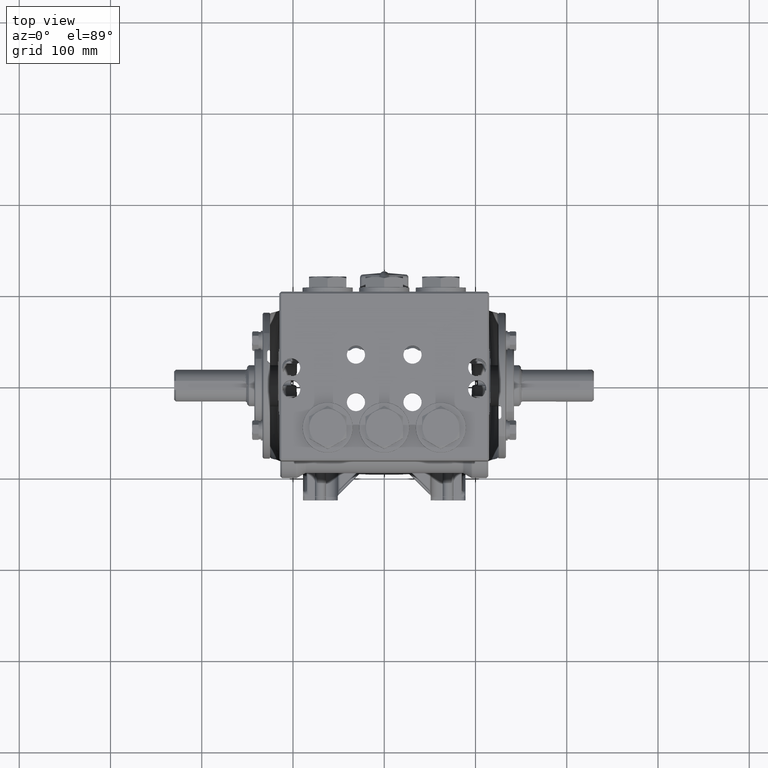
[diagram: clean part render]
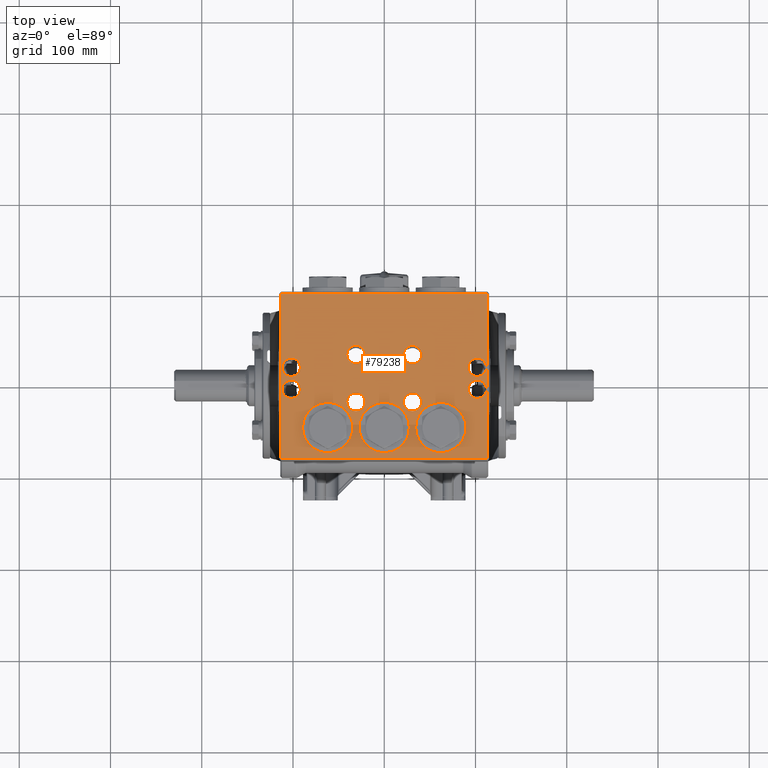
[diagram: same view with one face highlighted and labeled with its STEP entity id]
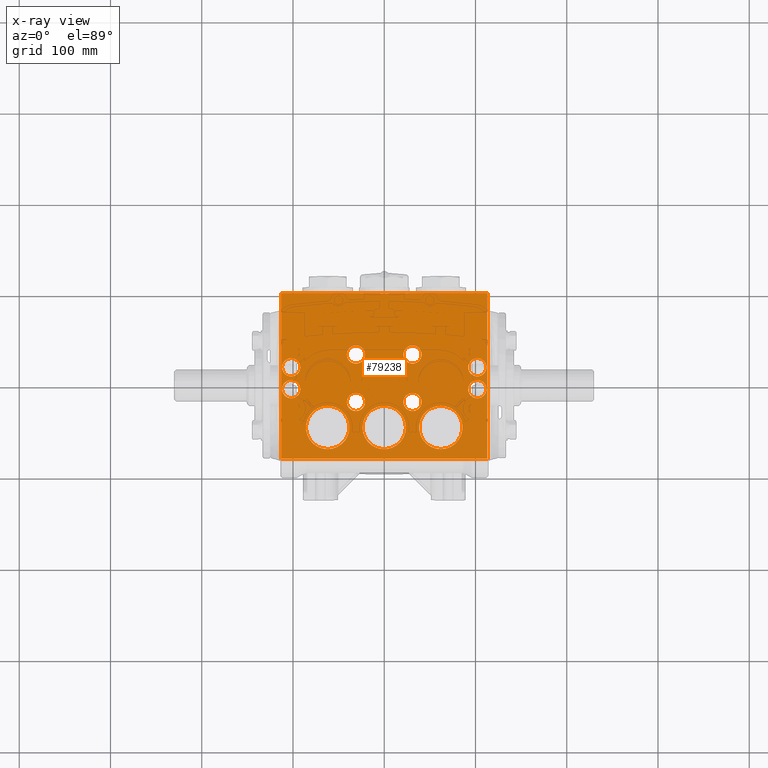
[diagram: x-ray of the same camera — body ghosted, the highlighted face saturated]
A machine part, top view. The second image highlights one B-rep face of the part: STEP entity #79238.
The next image is the same camera in x-ray: the body ghosted, the highlighted face saturated — about 0% of this face is hidden behind the body in this view.
In plain terms, the highlighted planar face has unit normal (-0, 0, 1).
Its self-contained STEP definition (entity closure, byte-faithful):
#83 = AXIS2_PLACEMENT_3D ( 'NONE', #109994, #57343, #92668 ) ;
#170 = DIRECTION ( 'NONE',  ( 1.000000000000000000, 0.0000000000000000000, 0.0000000000000000000 ) ) ;
#651 = AXIS2_PLACEMENT_3D ( 'NONE', #84344, #5259, #40465 ) ;
#983 = AXIS2_PLACEMENT_3D ( 'NONE', #10173, #45377, #80563 ) ;
#1055 = EDGE_LOOP ( 'NONE', ( #36275, #17373 ) ) ;
#1179 = DIRECTION ( 'NONE',  ( 0.0000000000000000000, 0.0000000000000000000, 1.000000000000000000 ) ) ;
#1830 = CARTESIAN_POINT ( 'NONE',  ( -2.440944881889764329, -2.125984251968509930, 18.18897637795275912 ) ) ;
#1907 = CIRCLE ( 'NONE', #16598, 0.9350393700787401619 ) ;
#2054 = EDGE_CURVE ( 'NONE', #51472, #72058, #109255, .T. ) ;
#2187 = CIRCLE ( 'NONE', #66603, 0.3937007874015748810 ) ;
#2221 = CARTESIAN_POINT ( 'NONE',  ( 1.614173228346455824, -1.023622047244099997, 18.18897637795275557 ) ) ;
#2248 = VERTEX_POINT ( 'NONE', #107138 ) ;
#2425 = VECTOR ( 'NONE', #10828, 39.37007874015748143 ) ;
#2764 = DIRECTION ( 'NONE',  ( 0.0000000000000000000, 1.000000000000000000, 0.0000000000000000000 ) ) ;
#3573 = CARTESIAN_POINT ( 'NONE',  ( 3.622047244094487084, 0.4724409448818843171, 18.18897637795275557 ) ) ;
#3814 = AXIS2_PLACEMENT_3D ( 'NONE', #6123, #41323, #76456 ) ;
#3940 = EDGE_CURVE ( 'NONE', #64519, #84941, #69930, .T. ) ;
#3947 = EDGE_CURVE ( 'NONE', #98404, #69765, #55193, .T. ) ;
#3972 = VERTEX_POINT ( 'NONE', #35924 ) ;
#4437 = EDGE_LOOP ( 'NONE', ( #101059, #16388 ) ) ;
#5259 = DIRECTION ( 'NONE',  ( -0.0000000000000000000, 0.0000000000000000000, 1.000000000000000000 ) ) ;
#5464 = AXIS2_PLACEMENT_3D ( 'NONE', #17459, #52630, #87943 ) ;
#5820 = FACE_BOUND ( 'NONE', #76326, .T. ) ;
#6123 = CARTESIAN_POINT ( 'NONE',  ( 1.220472440944880832, 1.023622047244089117, 18.18897637795275557 ) ) ;
#6152 = EDGE_CURVE ( 'NONE', #36482, #22790, #11648, .T. ) ;
#6207 = CIRCLE ( 'NONE', #70663, 0.9350393700787407170 ) ;
#6321 = ORIENTED_EDGE ( 'NONE', *, *, #60718, .T. ) ;
#6644 = VERTEX_POINT ( 'NONE', #100692 ) ;
#6851 = DIRECTION ( 'NONE',  ( 0.0000000000000000000, 0.0000000000000000000, 1.000000000000000000 ) ) ;
#6997 = CIRCLE ( 'NONE', #71465, 0.3937007874015746034 ) ;
#7093 = ORIENTED_EDGE ( 'NONE', *, *, #79258, .F. ) ;
#8014 = VERTEX_POINT ( 'NONE', #3573 ) ;
#8037 = AXIS2_PLACEMENT_3D ( 'NONE', #80196, #1179, #36352 ) ;
#8687 = EDGE_CURVE ( 'NONE', #65908, #65798, #86838, .T. ) ;
#9374 = ORIENTED_EDGE ( 'NONE', *, *, #44243, .T. ) ;
#10173 = CARTESIAN_POINT ( 'NONE',  ( 1.220472440944880832, 1.023622047244089117, 18.18897637795275557 ) ) ;
#10659 = VERTEX_POINT ( 'NONE', #17728 ) ;
#10828 = DIRECTION ( 'NONE',  ( 2.250452076942885066E-16, -1.000000000000000000, 0.0000000000000000000 ) ) ;
#10844 = DIRECTION ( 'NONE',  ( -1.000000000000000000, 0.0000000000000000000, -0.0000000000000000000 ) ) ;
#11648 = CIRCLE ( 'NONE', #76082, 0.3937007874015746034 ) ;
#11912 = ORIENTED_EDGE ( 'NONE', *, *, #3947, .F. ) ;
#11973 = DIRECTION ( 'NONE',  ( -0.0000000000000000000, -0.0000000000000000000, -1.000000000000000000 ) ) ;
#12130 = ORIENTED_EDGE ( 'NONE', *, *, #23645, .T. ) ;
#12488 = EDGE_LOOP ( 'NONE', ( #11912, #95375 ) ) ;
#12555 = EDGE_LOOP ( 'NONE', ( #61555, #7093 ) ) ;
#12865 = CARTESIAN_POINT ( 'NONE',  ( -0.8267716535433070613, 1.023622047244089117, 18.18897637795275557 ) ) ;
#14454 = FACE_BOUND ( 'NONE', #12488, .T. ) ;
#14764 = EDGE_LOOP ( 'NONE', ( #21202, #98246 ) ) ;
#14957 = ORIENTED_EDGE ( 'NONE', *, *, #2054, .T. ) ;
#16388 = ORIENTED_EDGE ( 'NONE', *, *, #76080, .F. ) ;
#16598 = AXIS2_PLACEMENT_3D ( 'NONE', #41927, #77077, #112423 ) ;
#17373 = ORIENTED_EDGE ( 'NONE', *, *, #103022, .T. ) ;
#17459 = CARTESIAN_POINT ( 'NONE',  ( 1.220472440944880832, -1.023622047244099997, 18.18897637795275557 ) ) ;
#17654 = CIRCLE ( 'NONE', #82164, 0.3937007874015748810 ) ;
#17728 = CARTESIAN_POINT ( 'NONE',  ( -4.448818897637798031, 3.661417322834641386, 18.18897637795275557 ) ) ;
#19001 = ORIENTED_EDGE ( 'NONE', *, *, #56551, .T. ) ;
#19542 = EDGE_LOOP ( 'NONE', ( #24664, #34757 ) ) ;
#19799 = VECTOR ( 'NONE', #60150, 39.37007874015748143 ) ;
#21202 = ORIENTED_EDGE ( 'NONE', *, *, #49806, .T. ) ;
#22099 = DIRECTION ( 'NONE',  ( -0.0000000000000000000, -0.0000000000000000000, -1.000000000000000000 ) ) ;
#22380 = AXIS2_PLACEMENT_3D ( 'NONE', #102826, #23681, #58830 ) ;
#22790 = VERTEX_POINT ( 'NONE', #82788 ) ;
#23107 = FACE_BOUND ( 'NONE', #19542, .T. ) ;
#23352 = EDGE_LOOP ( 'NONE', ( #64545, #19001, #9374, #39002 ) ) ;
#23645 = EDGE_CURVE ( 'NONE', #8014, #56320, #36419, .T. ) ;
#23681 = DIRECTION ( 'NONE',  ( -0.0000000000000000000, 0.0000000000000000000, 1.000000000000000000 ) ) ;
#24136 = CARTESIAN_POINT ( 'NONE',  ( -4.015748031496062964, -0.4724409448818952528, 18.18897637795275557 ) ) ;
#24664 = ORIENTED_EDGE ( 'NONE', *, *, #41313, .F. ) ;
#24977 = CARTESIAN_POINT ( 'NONE',  ( 5.463695987328526437E-16, -3.464566929133864548, 18.18897637795275557 ) ) ;
#25123 = DIRECTION ( 'NONE',  ( -0.0000000000000000000, -0.0000000000000000000, -1.000000000000000000 ) ) ;
#26192 = CARTESIAN_POINT ( 'NONE',  ( 0.9350393700787398288, -2.125984251968509930, 18.18897637795275557 ) ) ;
#27625 = AXIS2_PLACEMENT_3D ( 'NONE', #46622, #81817, #2764 ) ;
#27823 = CARTESIAN_POINT ( 'NONE',  ( -2.440944881889764329, -3.061023622047250647, 18.18897637795275912 ) ) ;
#28151 = LINE ( 'NONE', #89994, #38535 ) ;
#28329 = EDGE_CURVE ( 'NONE', #54572, #2248, #39190, .T. ) ;
#28845 = AXIS2_PLACEMENT_3D ( 'NONE', #43671, #78827, #114192 ) ;
#30290 = CARTESIAN_POINT ( 'NONE',  ( -4.409448818897637068, 0.4724409448818843726, 18.18897637795275557 ) ) ;
#31261 = DIRECTION ( 'NONE',  ( 0.0000000000000000000, 0.0000000000000000000, 1.000000000000000000 ) ) ;
#32329 = FACE_BOUND ( 'NONE', #4437, .T. ) ;
#32902 = CARTESIAN_POINT ( 'NONE',  ( -1.220472440944881942, 1.023622047244089117, 18.18897637795275557 ) ) ;
#33120 = ORIENTED_EDGE ( 'NONE', *, *, #54647, .T. ) ;
#33381 = CIRCLE ( 'NONE', #48121, 0.3937007874015748810 ) ;
#33784 = CARTESIAN_POINT ( 'NONE',  ( -1.220472440944881942, 1.023622047244089117, 18.18897637795275557 ) ) ;
#33871 = DIRECTION ( 'NONE',  ( 0.0000000000000000000, 0.0000000000000000000, 1.000000000000000000 ) ) ;
#33922 = CARTESIAN_POINT ( 'NONE',  ( 2.440944881889763440, -2.125984251968509930, 18.18897637795275912 ) ) ;
#33949 = DIRECTION ( 'NONE',  ( -1.000000000000000000, 0.0000000000000000000, 0.0000000000000000000 ) ) ;
#34757 = ORIENTED_EDGE ( 'NONE', *, *, #6152, .F. ) ;
#35924 = CARTESIAN_POINT ( 'NONE',  ( 4.409448818897636180, -0.4724409448818953083, 18.18897637795275557 ) ) ;
#36275 = ORIENTED_EDGE ( 'NONE', *, *, #3940, .T. ) ;
#36352 = DIRECTION ( 'NONE',  ( 1.000000000000000000, 0.0000000000000000000, 0.0000000000000000000 ) ) ;
#36419 = CIRCLE ( 'NONE', #100979, 0.3937007874015746034 ) ;
#36482 = VERTEX_POINT ( 'NONE', #68301 ) ;
#37031 = AXIS2_PLACEMENT_3D ( 'NONE', #33922, #69105, #104413 ) ;
#38335 = EDGE_CURVE ( 'NONE', #79965, #100660, #17654, .T. ) ;
#38535 = VECTOR ( 'NONE', #10844, 39.37007874015748143 ) ;
#39002 = ORIENTED_EDGE ( 'NONE', *, *, #40710, .T. ) ;
#39190 = LINE ( 'NONE', #74344, #75933 ) ;
#40346 = CARTESIAN_POINT ( 'NONE',  ( 4.409448818897636180, 0.4724409448818842616, 18.18897637795275557 ) ) ;
#40465 = DIRECTION ( 'NONE',  ( 1.000000000000000000, 0.0000000000000000000, 0.0000000000000000000 ) ) ;
#40710 = EDGE_CURVE ( 'NONE', #92306, #2248, #77459, .T. ) ;
#41025 = FACE_BOUND ( 'NONE', #1055, .T. ) ;
#41313 = EDGE_CURVE ( 'NONE', #22790, #36482, #95484, .T. ) ;
#41323 = DIRECTION ( 'NONE',  ( -0.0000000000000000000, -0.0000000000000000000, -1.000000000000000000 ) ) ;
#41927 = CARTESIAN_POINT ( 'NONE',  ( -4.550902662691273296E-16, -2.125984251968509930, 18.18897637795275557 ) ) ;
#42053 = DIRECTION ( 'NONE',  ( 1.000000000000000000, 0.0000000000000000000, 0.0000000000000000000 ) ) ;
#43671 = CARTESIAN_POINT ( 'NONE',  ( -2.440944881889764329, -2.125984251968509930, 18.18897637795275912 ) ) ;
#44021 = CARTESIAN_POINT ( 'NONE',  ( -4.015748031496062964, 0.4724409448818843171, 18.18897637795275557 ) ) ;
#44243 = EDGE_CURVE ( 'NONE', #10659, #92306, #54642, .T. ) ;
#45377 = DIRECTION ( 'NONE',  ( -0.0000000000000000000, -0.0000000000000000000, -1.000000000000000000 ) ) ;
#45678 = AXIS2_PLACEMENT_3D ( 'NONE', #24136, #59301, #94632 ) ;
#46622 = CARTESIAN_POINT ( 'NONE',  ( 2.440944881889763440, -2.125984251968509930, 18.18897637795275912 ) ) ;
#47159 = DIRECTION ( 'NONE',  ( -1.000000000000000000, 0.0000000000000000000, 0.0000000000000000000 ) ) ;
#48121 = AXIS2_PLACEMENT_3D ( 'NONE', #91125, #11973, #47159 ) ;
#49298 = CARTESIAN_POINT ( 'NONE',  ( -4.448818897637796255, -3.464566929133864548, 18.18897637795275557 ) ) ;
#49304 = ORIENTED_EDGE ( 'NONE', *, *, #102891, .T. ) ;
#49646 = FACE_BOUND ( 'NONE', #14764, .T. ) ;
#49781 = CIRCLE ( 'NONE', #83, 0.3937007874015746034 ) ;
#49806 = EDGE_CURVE ( 'NONE', #81573, #79090, #78545, .T. ) ;
#50150 = ORIENTED_EDGE ( 'NONE', *, *, #60504, .F. ) ;
#50342 = CIRCLE ( 'NONE', #651, 0.9350393700787401619 ) ;
#50685 = CIRCLE ( 'NONE', #983, 0.3937007874015748810 ) ;
#50971 = CARTESIAN_POINT ( 'NONE',  ( -0.9350393700787406059, -2.125984251968509930, 18.18897637795275557 ) ) ;
#51472 = VERTEX_POINT ( 'NONE', #67940 ) ;
#51569 = ORIENTED_EDGE ( 'NONE', *, *, #65651, .T. ) ;
#52630 = DIRECTION ( 'NONE',  ( -0.0000000000000000000, -0.0000000000000000000, -1.000000000000000000 ) ) ;
#52863 = CARTESIAN_POINT ( 'NONE',  ( -2.440944881889764329, -1.190944881889769214, 18.18897637795275912 ) ) ;
#54242 = CIRCLE ( 'NONE', #68949, 0.3937007874015748810 ) ;
#54572 = VERTEX_POINT ( 'NONE', #107256 ) ;
#54618 = VERTEX_POINT ( 'NONE', #74019 ) ;
#54642 = LINE ( 'NONE', #89976, #2425 ) ;
#54647 = EDGE_CURVE ( 'NONE', #3972, #6644, #6997, .T. ) ;
#54743 = ORIENTED_EDGE ( 'NONE', *, *, #64520, .F. ) ;
#55193 = CIRCLE ( 'NONE', #105058, 0.3937007874015746034 ) ;
#56320 = VERTEX_POINT ( 'NONE', #40346 ) ;
#56551 = EDGE_CURVE ( 'NONE', #54572, #10659, #28151, .T. ) ;
#57275 = DIRECTION ( 'NONE',  ( -1.000000000000000000, 0.0000000000000000000, 0.0000000000000000000 ) ) ;
#57343 = DIRECTION ( 'NONE',  ( -0.0000000000000000000, -0.0000000000000000000, -1.000000000000000000 ) ) ;
#57734 = CIRCLE ( 'NONE', #8037, 0.3937007874015746034 ) ;
#57979 = ORIENTED_EDGE ( 'NONE', *, *, #38335, .F. ) ;
#58269 = FACE_BOUND ( 'NONE', #106075, .T. ) ;
#58429 = CARTESIAN_POINT ( 'NONE',  ( -0.8267716535433070613, -1.023622047244099997, 18.18897637795275557 ) ) ;
#58830 = DIRECTION ( 'NONE',  ( 1.000000000000000000, 0.0000000000000000000, 0.0000000000000000000 ) ) ;
#59120 = AXIS2_PLACEMENT_3D ( 'NONE', #77774, #113143, #33949 ) ;
#59301 = DIRECTION ( 'NONE',  ( 0.0000000000000000000, 0.0000000000000000000, 1.000000000000000000 ) ) ;
#60150 = DIRECTION ( 'NONE',  ( 1.000000000000000000, 0.0000000000000000000, 0.0000000000000000000 ) ) ;
#60297 = DIRECTION ( 'NONE',  ( -1.000000000000000000, 0.0000000000000000000, 0.0000000000000000000 ) ) ;
#60504 = EDGE_CURVE ( 'NONE', #110081, #111921, #1907, .T. ) ;
#60718 = EDGE_CURVE ( 'NONE', #56320, #8014, #49781, .T. ) ;
#61555 = ORIENTED_EDGE ( 'NONE', *, *, #102221, .F. ) ;
#63547 = DIRECTION ( 'NONE',  ( -0.0000000000000000000, 1.544519697810316783E-16, -1.000000000000000000 ) ) ;
#64519 = VERTEX_POINT ( 'NONE', #75077 ) ;
#64520 = EDGE_CURVE ( 'NONE', #100660, #79965, #54242, .T. ) ;
#64545 = ORIENTED_EDGE ( 'NONE', *, *, #28329, .F. ) ;
#65651 = EDGE_CURVE ( 'NONE', #72058, #51472, #50685, .T. ) ;
#65798 = VERTEX_POINT ( 'NONE', #101925 ) ;
#65908 = VERTEX_POINT ( 'NONE', #112321 ) ;
#66444 = DIRECTION ( 'NONE',  ( 1.000000000000000000, 0.0000000000000000000, 0.0000000000000000000 ) ) ;
#66603 = AXIS2_PLACEMENT_3D ( 'NONE', #32902, #68084, #103384 ) ;
#67518 = PLANE ( 'NONE',  #22380 ) ;
#67940 = CARTESIAN_POINT ( 'NONE',  ( 1.614173228346455824, 1.023622047244089117, 18.18897637795275557 ) ) ;
#68084 = DIRECTION ( 'NONE',  ( 0.0000000000000000000, 0.0000000000000000000, 1.000000000000000000 ) ) ;
#68301 = CARTESIAN_POINT ( 'NONE',  ( -4.409448818897637068, -0.4724409448818951973, 18.18897637795275557 ) ) ;
#68949 = AXIS2_PLACEMENT_3D ( 'NONE', #110434, #31261, #66444 ) ;
#68962 = DIRECTION ( 'NONE',  ( 0.0000000000000000000, 0.0000000000000000000, 1.000000000000000000 ) ) ;
#69055 = DIRECTION ( 'NONE',  ( 1.000000000000000000, 0.0000000000000000000, 0.0000000000000000000 ) ) ;
#69105 = DIRECTION ( 'NONE',  ( -0.0000000000000000000, -1.544519697810316783E-16, 1.000000000000000000 ) ) ;
#69765 = VERTEX_POINT ( 'NONE', #30290 ) ;
#69930 = CIRCLE ( 'NONE', #5464, 0.3937007874015748810 ) ;
#70663 = AXIS2_PLACEMENT_3D ( 'NONE', #1830, #63547, #98833 ) ;
#71465 = AXIS2_PLACEMENT_3D ( 'NONE', #101259, #22099, #57275 ) ;
#72058 = VERTEX_POINT ( 'NONE', #80225 ) ;
#74019 = CARTESIAN_POINT ( 'NONE',  ( -1.614173228346456712, 1.023622047244089117, 18.18897637795275557 ) ) ;
#74344 = CARTESIAN_POINT ( 'NONE',  ( 4.448818897637795367, -3.543307086614178480, 18.18897637795275557 ) ) ;
#75077 = CARTESIAN_POINT ( 'NONE',  ( 0.8267716535433059510, -1.023622047244099997, 18.18897637795275557 ) ) ;
#75407 = EDGE_LOOP ( 'NONE', ( #12130, #6321 ) ) ;
#75870 = CARTESIAN_POINT ( 'NONE',  ( -3.622047244094488416, 0.4724409448818843171, 18.18897637795275557 ) ) ;
#75933 = VECTOR ( 'NONE', #109684, 39.37007874015748143 ) ;
#76080 = EDGE_CURVE ( 'NONE', #65798, #65908, #77320, .T. ) ;
#76082 = AXIS2_PLACEMENT_3D ( 'NONE', #113062, #33871, #69055 ) ;
#76151 = FACE_BOUND ( 'NONE', #102616, .T. ) ;
#76326 = EDGE_LOOP ( 'NONE', ( #49304, #33120 ) ) ;
#76456 = DIRECTION ( 'NONE',  ( -1.000000000000000000, 0.0000000000000000000, 0.0000000000000000000 ) ) ;
#77077 = DIRECTION ( 'NONE',  ( -0.0000000000000000000, 0.0000000000000000000, 1.000000000000000000 ) ) ;
#77320 = CIRCLE ( 'NONE', #27625, 0.9350393700787407170 ) ;
#77459 = LINE ( 'NONE', #24977, #19799 ) ;
#77774 = CARTESIAN_POINT ( 'NONE',  ( 4.015748031496062076, -0.4724409448818952528, 18.18897637795275557 ) ) ;
#77898 = VERTEX_POINT ( 'NONE', #12865 ) ;
#78545 = CIRCLE ( 'NONE', #28845, 0.9350393700787407170 ) ;
#78827 = DIRECTION ( 'NONE',  ( -0.0000000000000000000, 1.544519697810316783E-16, -1.000000000000000000 ) ) ;
#79090 = VERTEX_POINT ( 'NONE', #27823 ) ;
#79176 = DIRECTION ( 'NONE',  ( 0.0000000000000000000, 0.0000000000000000000, 1.000000000000000000 ) ) ;
#79238 = ADVANCED_FACE ( 'NONE', ( #102261, #23107, #58269, #93607, #14454, #49646, #84910, #5820, #41025, #76151, #111512, #32329 ), #67518, .T. ) ;
#79258 = EDGE_CURVE ( 'NONE', #54618, #77898, #2187, .T. ) ;
#79331 = CIRCLE ( 'NONE', #94192, 0.3937007874015748810 ) ;
#79965 = VERTEX_POINT ( 'NONE', #58429 ) ;
#80196 = CARTESIAN_POINT ( 'NONE',  ( -4.015748031496062964, 0.4724409448818843171, 18.18897637795275557 ) ) ;
#80225 = CARTESIAN_POINT ( 'NONE',  ( 0.8267716535433059510, 1.023622047244089117, 18.18897637795275557 ) ) ;
#80563 = DIRECTION ( 'NONE',  ( -1.000000000000000000, 0.0000000000000000000, 0.0000000000000000000 ) ) ;
#81573 = VERTEX_POINT ( 'NONE', #52863 ) ;
#81817 = DIRECTION ( 'NONE',  ( -0.0000000000000000000, -1.544519697810316783E-16, 1.000000000000000000 ) ) ;
#82164 = AXIS2_PLACEMENT_3D ( 'NONE', #85960, #6851, #42053 ) ;
#82788 = CARTESIAN_POINT ( 'NONE',  ( -3.622047244094488416, -0.4724409448818952528, 18.18897637795275557 ) ) ;
#84344 = CARTESIAN_POINT ( 'NONE',  ( -4.550902662691273296E-16, -2.125984251968509930, 18.18897637795275557 ) ) ;
#84910 = FACE_BOUND ( 'NONE', #96695, .T. ) ;
#84941 = VERTEX_POINT ( 'NONE', #2221 ) ;
#85960 = CARTESIAN_POINT ( 'NONE',  ( -1.220472440944881942, -1.023622047244099997, 18.18897637795275557 ) ) ;
#86838 = CIRCLE ( 'NONE', #37031, 0.9350393700787407170 ) ;
#87943 = DIRECTION ( 'NONE',  ( -1.000000000000000000, 0.0000000000000000000, 0.0000000000000000000 ) ) ;
#89976 = CARTESIAN_POINT ( 'NONE',  ( -4.448818897637796255, -3.543307086614178480, 18.18897637795275557 ) ) ;
#89994 = CARTESIAN_POINT ( 'NONE',  ( -4.527559055118111964, 3.661417322834641386, 18.18897637795275557 ) ) ;
#91125 = CARTESIAN_POINT ( 'NONE',  ( 1.220472440944880832, -1.023622047244099997, 18.18897637795275557 ) ) ;
#92306 = VERTEX_POINT ( 'NONE', #49298 ) ;
#92668 = DIRECTION ( 'NONE',  ( -1.000000000000000000, 0.0000000000000000000, 0.0000000000000000000 ) ) ;
#93607 = FACE_BOUND ( 'NONE', #12555, .T. ) ;
#94192 = AXIS2_PLACEMENT_3D ( 'NONE', #33784, #68962, #104268 ) ;
#94632 = DIRECTION ( 'NONE',  ( 1.000000000000000000, 0.0000000000000000000, 0.0000000000000000000 ) ) ;
#95375 = ORIENTED_EDGE ( 'NONE', *, *, #106694, .F. ) ;
#95484 = CIRCLE ( 'NONE', #45678, 0.3937007874015746034 ) ;
#96695 = EDGE_LOOP ( 'NONE', ( #111445, #50150 ) ) ;
#98246 = ORIENTED_EDGE ( 'NONE', *, *, #108899, .T. ) ;
#98404 = VERTEX_POINT ( 'NONE', #75870 ) ;
#98833 = DIRECTION ( 'NONE',  ( 0.0000000000000000000, 1.000000000000000000, 0.0000000000000000000 ) ) ;
#100660 = VERTEX_POINT ( 'NONE', #102605 ) ;
#100692 = CARTESIAN_POINT ( 'NONE',  ( 3.622047244094487084, -0.4724409448818952528, 18.18897637795275557 ) ) ;
#100979 = AXIS2_PLACEMENT_3D ( 'NONE', #104267, #25123, #60297 ) ;
#101059 = ORIENTED_EDGE ( 'NONE', *, *, #8687, .F. ) ;
#101259 = CARTESIAN_POINT ( 'NONE',  ( 4.015748031496062076, -0.4724409448818952528, 18.18897637795275557 ) ) ;
#101925 = CARTESIAN_POINT ( 'NONE',  ( 2.440944881889763440, -3.061023622047250647, 18.18897637795275912 ) ) ;
#102221 = EDGE_CURVE ( 'NONE', #77898, #54618, #79331, .T. ) ;
#102261 = FACE_OUTER_BOUND ( 'NONE', #23352, .T. ) ;
#102605 = CARTESIAN_POINT ( 'NONE',  ( -1.614173228346456712, -1.023622047244099997, 18.18897637795275557 ) ) ;
#102616 = EDGE_LOOP ( 'NONE', ( #51569, #14957 ) ) ;
#102826 = CARTESIAN_POINT ( 'NONE',  ( -4.527559055118110187, -3.543307086614178480, 18.18897637795275557 ) ) ;
#102891 = EDGE_CURVE ( 'NONE', #6644, #3972, #109013, .T. ) ;
#103022 = EDGE_CURVE ( 'NONE', #84941, #64519, #33381, .T. ) ;
#103384 = DIRECTION ( 'NONE',  ( 1.000000000000000000, 0.0000000000000000000, 0.0000000000000000000 ) ) ;
#104267 = CARTESIAN_POINT ( 'NONE',  ( 4.015748031496062076, 0.4724409448818843171, 18.18897637795275557 ) ) ;
#104268 = DIRECTION ( 'NONE',  ( 1.000000000000000000, 0.0000000000000000000, 0.0000000000000000000 ) ) ;
#104413 = DIRECTION ( 'NONE',  ( 0.0000000000000000000, 1.000000000000000000, 0.0000000000000000000 ) ) ;
#105058 = AXIS2_PLACEMENT_3D ( 'NONE', #44021, #79176, #170 ) ;
#106075 = EDGE_LOOP ( 'NONE', ( #57979, #54743 ) ) ;
#106422 = EDGE_CURVE ( 'NONE', #111921, #110081, #50342, .T. ) ;
#106694 = EDGE_CURVE ( 'NONE', #69765, #98404, #57734, .T. ) ;
#107138 = CARTESIAN_POINT ( 'NONE',  ( 4.448818897637795367, -3.464566929133864548, 18.18897637795275557 ) ) ;
#107256 = CARTESIAN_POINT ( 'NONE',  ( 4.448818897637796255, 3.661417322834641386, 18.18897637795275557 ) ) ;
#108899 = EDGE_CURVE ( 'NONE', #79090, #81573, #6207, .T. ) ;
#109013 = CIRCLE ( 'NONE', #59120, 0.3937007874015746034 ) ;
#109255 = CIRCLE ( 'NONE', #3814, 0.3937007874015748810 ) ;
#109684 = DIRECTION ( 'NONE',  ( -2.250452076942885066E-16, -1.000000000000000000, 0.0000000000000000000 ) ) ;
#109994 = CARTESIAN_POINT ( 'NONE',  ( 4.015748031496062076, 0.4724409448818843171, 18.18897637795275557 ) ) ;
#110081 = VERTEX_POINT ( 'NONE', #50971 ) ;
#110434 = CARTESIAN_POINT ( 'NONE',  ( -1.220472440944881942, -1.023622047244099997, 18.18897637795275557 ) ) ;
#111445 = ORIENTED_EDGE ( 'NONE', *, *, #106422, .F. ) ;
#111512 = FACE_BOUND ( 'NONE', #75407, .T. ) ;
#111921 = VERTEX_POINT ( 'NONE', #26192 ) ;
#112321 = CARTESIAN_POINT ( 'NONE',  ( 2.440944881889763440, -1.190944881889769214, 18.18897637795275912 ) ) ;
#112423 = DIRECTION ( 'NONE',  ( 1.000000000000000000, 0.0000000000000000000, 0.0000000000000000000 ) ) ;
#113062 = CARTESIAN_POINT ( 'NONE',  ( -4.015748031496062964, -0.4724409448818952528, 18.18897637795275557 ) ) ;
#113143 = DIRECTION ( 'NONE',  ( -0.0000000000000000000, -0.0000000000000000000, -1.000000000000000000 ) ) ;
#114192 = DIRECTION ( 'NONE',  ( 0.0000000000000000000, 1.000000000000000000, 0.0000000000000000000 ) ) ;